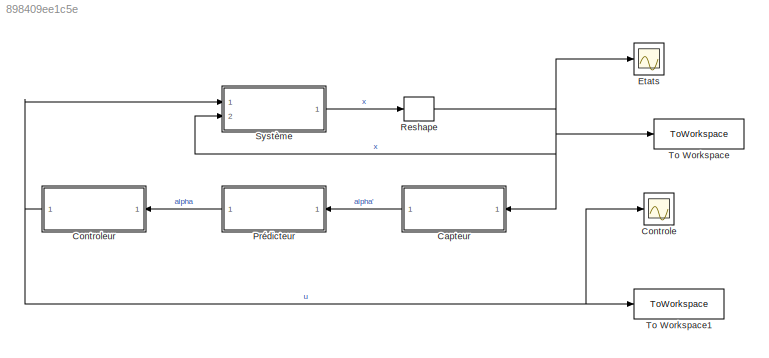
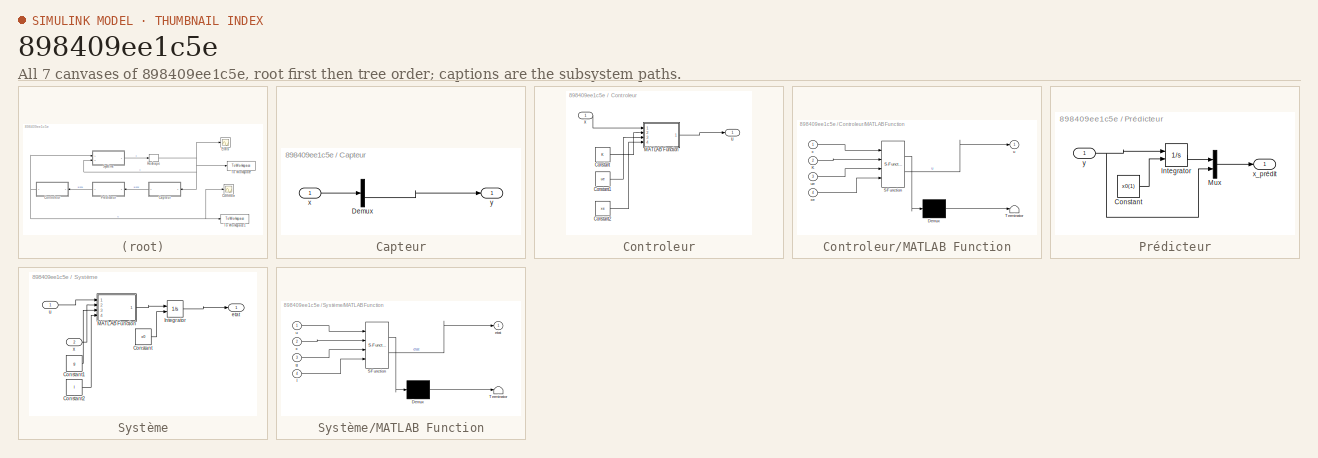
[diagram: thumbnail index - all 7 canvases of the model, root first then tree order]
MODEL slx_898409ee1c5e
KIND model
CONFIG AbsTol = auto
CONFIG EnableMultiTasking = off
CONFIG FixedStep = auto
CONFIG MaxStep = auto
CONFIG MinStep = auto
CONFIG RelTol = 1e-3
CONFIG SampleTimeConstraint = Unconstrained
CONFIG SolverName = VariableStepAuto
CONFIG StartTime = 0.0
CONFIG StopTime = 10.0
BLOCK [SubSystem] Capteur
  Ports = [1, 1]
  RequestExecContextInheritance = off
BLOCK [Demux] Capteur/Demux
  Outputs = 2
  Ports = [1, 2]
BLOCK [Inport] Capteur/x
BLOCK [Outport] Capteur/y
BLOCK [Scope] Controle
  Floating = off
  NumInputPorts = 1
  Ports = [1]
  ScopeSpecificationString = Simulink.scopes.TimeScopeBlockCfg('CurrentConfiguration', extmgr.ConfigurationSet(extmgr.Configuration('Core','General UI',true),extmgr.Configuration('Core','Source UI',true),extmgr.Configuration('Sources','WiredSimulink',true,'DataLoggingVariableName','ScopeData1'),extmgr.Configuration('Visuals','Time Domain',true,'SerializedDisplays',{struct('MinYLimReal','0.85065','MaxYLimReal','1.65081','YLabe...<+1438ch>
BLOCK [SubSystem] Controleur
  Ports = [1, 1]
  RequestExecContextInheritance = off
BLOCK [Constant] Controleur/Constant
  Value = K
  VectorParams1D = off
BLOCK [Constant] Controleur/Constant1
  Value = ue
BLOCK [Constant] Controleur/Constant2
  Value = xe
  VectorParams1D = off
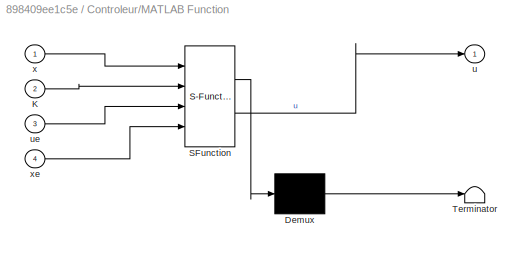
BLOCK [SubSystem] Controleur/MATLAB Function
  ErrorFcn = Stateflow.Translate.translate
  PermitHierarchicalResolution = ExplicitOnly
  Ports = [4, 1]
  RequestExecContextInheritance = off
  SFBlockType = MATLAB Function
  TreatAsAtomicUnit = on
BLOCK [Demux] Controleur/MATLAB Function/ Demux 
  Outputs = 1
  Ports = [1, 1]
BLOCK [S-Function] Controleur/MATLAB Function/ SFunction 
  EnableBusSupport = on
  FunctionName = sf_sfun
  PortCounts = [4 2]
  Ports = [4, 2]
  SFcnIsStateOwnerBlock = off
  SFunctionDeploymentMode = off
  Tag = Stateflow S-Function 1
BLOCK [Terminator] Controleur/MATLAB Function/ Terminator 
BLOCK [Inport] Controleur/MATLAB Function/K
  Port = 2
BLOCK [Outport] Controleur/MATLAB Function/u
BLOCK [Inport] Controleur/MATLAB Function/ue
  Port = 3
BLOCK [Inport] Controleur/MATLAB Function/x
BLOCK [Inport] Controleur/MATLAB Function/xe
  Port = 4
BLOCK [Outport] Controleur/u
BLOCK [Inport] Controleur/x
BLOCK [Scope] Etats
  Floating = off
  NumInputPorts = 1
  Ports = [1]
  ScopeSpecificationString = Simulink.scopes.TimeScopeBlockCfg('CurrentConfiguration', extmgr.ConfigurationSet(extmgr.Configuration('Core','General UI',true),extmgr.Configuration('Core','Source UI',true),extmgr.Configuration('Sources','WiredSimulink',true),extmgr.Configuration('Visuals','Time Domain',true,'SerializedDisplays',{struct('MinYLimReal','-0.03162','MaxYLimReal','0.17805','YLabelReal','','MinYLimMag','0.00000','MaxY...<+1410ch>
BLOCK [SubSystem] Prédicteur
  Ports = [1, 1]
  RequestExecContextInheritance = off
BLOCK [Constant] Prédicteur/Constant
  Value = x0(1)
BLOCK [Integrator] Prédicteur/Integrator
  InitialConditionSource = external
  Ports = [2, 1]
BLOCK [Mux] Prédicteur/Mux
  DisplayOption = bar
  Inputs = 2
  Ports = [2, 1]
BLOCK [Outport] Prédicteur/x_prédit
BLOCK [Inport] Prédicteur/y
BLOCK [Reshape] Reshape
  Ports = [1, 1]
BLOCK [SubSystem] Système
  Ports = [2, 1]
  RequestExecContextInheritance = off
BLOCK [Constant] Système/Constant
  Value = x0
  VectorParams1D = off
BLOCK [Constant] Système/Constant1
  Value = g
BLOCK [Constant] Système/Constant2
  Value = l
BLOCK [Integrator] Système/Integrator
  InitialConditionSource = external
  Ports = [2, 1]
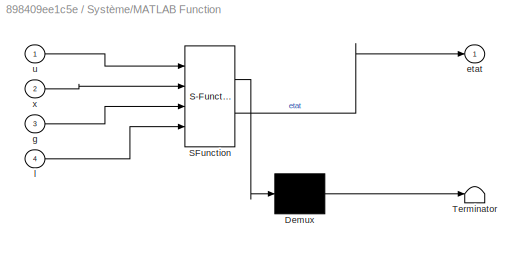
BLOCK [SubSystem] Système/MATLAB Function
  ErrorFcn = Stateflow.Translate.translate
  PermitHierarchicalResolution = ExplicitOnly
  Ports = [4, 1]
  RequestExecContextInheritance = off
  SFBlockType = MATLAB Function
  TreatAsAtomicUnit = on
BLOCK [Demux] Système/MATLAB Function/ Demux 
  Outputs = 1
  Ports = [1, 1]
BLOCK [S-Function] Système/MATLAB Function/ SFunction 
  EnableBusSupport = on
  FunctionName = sf_sfun
  PortCounts = [4 2]
  Ports = [4, 2]
  SFcnIsStateOwnerBlock = off
  SFunctionDeploymentMode = off
  Tag = Stateflow S-Function 2
BLOCK [Terminator] Système/MATLAB Function/ Terminator 
BLOCK [Outport] Système/MATLAB Function/etat
BLOCK [Inport] Système/MATLAB Function/g
  Port = 3
BLOCK [Inport] Système/MATLAB Function/l
  Port = 4
BLOCK [Inport] Système/MATLAB Function/u
BLOCK [Inport] Système/MATLAB Function/x
  Port = 2
BLOCK [Outport] Système/etat
BLOCK [Inport] Système/u
BLOCK [Inport] Système/x
  Port = 2
BLOCK [ToWorkspace] To Workspace
  FixptAsFi = on
  MaxDataPoints = inf
  Ports = [1]
  SampleTime = -1
  SaveFormat = Timeseries
  VariableName = X
BLOCK [ToWorkspace] To Workspace1
  FixptAsFi = on
  MaxDataPoints = inf
  Ports = [1]
  SampleTime = -1
  SaveFormat = Timeseries
  VariableName = U
LINE Capteur/Demux:2 -> Capteur/y:1
LINE Capteur/x:1 -> Capteur/Demux:1
LINE Capteur:1 -> Prédicteur:1
LINE Controleur/Constant1:1 -> Controleur/MATLAB Function:3
LINE Controleur/Constant2:1 -> Controleur/MATLAB Function:4
LINE Controleur/Constant:1 -> Controleur/MATLAB Function:2
LINE Controleur/MATLAB Function:1 -> Controleur/u:1
LINE Controleur/x:1 -> Controleur/MATLAB Function:1
NET Controleur:1 -> Controle:1, Système:1, To Workspace1:1
LINE Prédicteur/Constant:1 -> Prédicteur/Integrator:2
LINE Prédicteur/Integrator:1 -> Prédicteur/Mux:1
LINE Prédicteur/Mux:1 -> Prédicteur/x_prédit:1
NET Prédicteur/y:1 -> Prédicteur/Integrator:1, Prédicteur/Mux:2
LINE Prédicteur:1 -> Controleur:1
NET Reshape:1 -> Capteur:1, Etats:1, Système:2, To Workspace:1
LINE Système/Constant1:1 -> Système/MATLAB Function:3
LINE Système/Constant2:1 -> Système/MATLAB Function:4
LINE Système/Constant:1 -> Système/Integrator:2
LINE Système/Integrator:1 -> Système/etat:1
LINE Système/MATLAB Function:1 -> Système/Integrator:1
LINE Système/u:1 -> Système/MATLAB Function:1
LINE Système/x:1 -> Système/MATLAB Function:2
LINE Système:1 -> Reshape:1
note: NET lines group one-source signal fan-out (src -> all destinations, sorted); 1:1 wires keep LINE
CHART Controleur/MATLAB Function states=1 transitions=1
  STATE_LABEL 'eML_blk_kernel()'
  STATE_LABEL 'SCRIPT:\nfunction u = fcn(x, K, ue, xe)\n\nu = ue + K*(x - xe);\nend'
CHART Système/MATLAB Function states=1 transitions=1
  STATE_LABEL 'eML_blk_kernel()'
  STATE_LABEL "SCRIPT:\nfunction etat = fcn(u,x, g, l)\n    x1_p = x(2);\n    x2_p = (g/l)*sin(x(1)) - (cos(x(1))*u)/l;\netat = [x1_p x2_p]';\nend\n"
CHART  states=0 transitions=0
CHART  states=0 transitions=0
